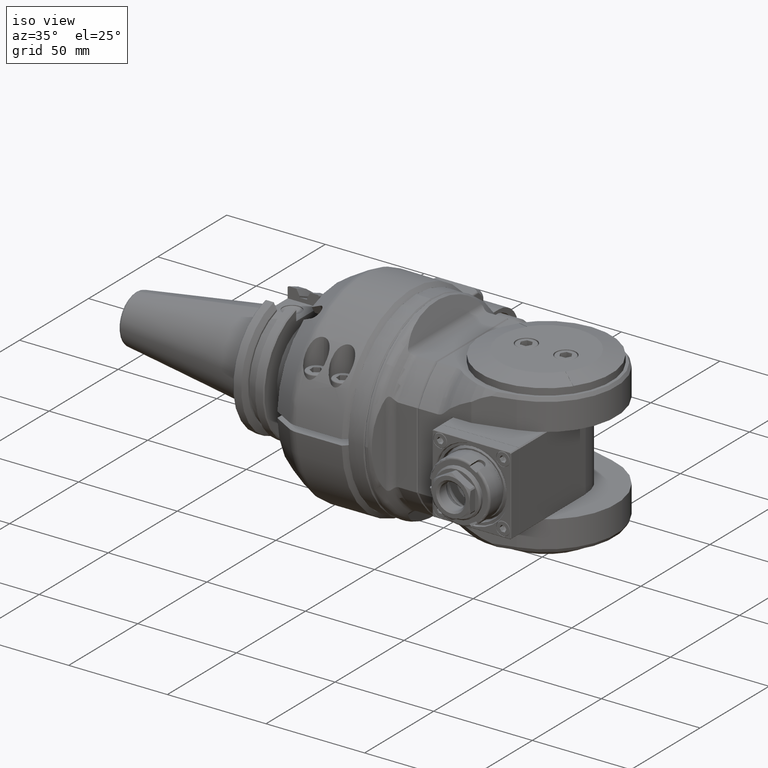
[diagram: clean part render]
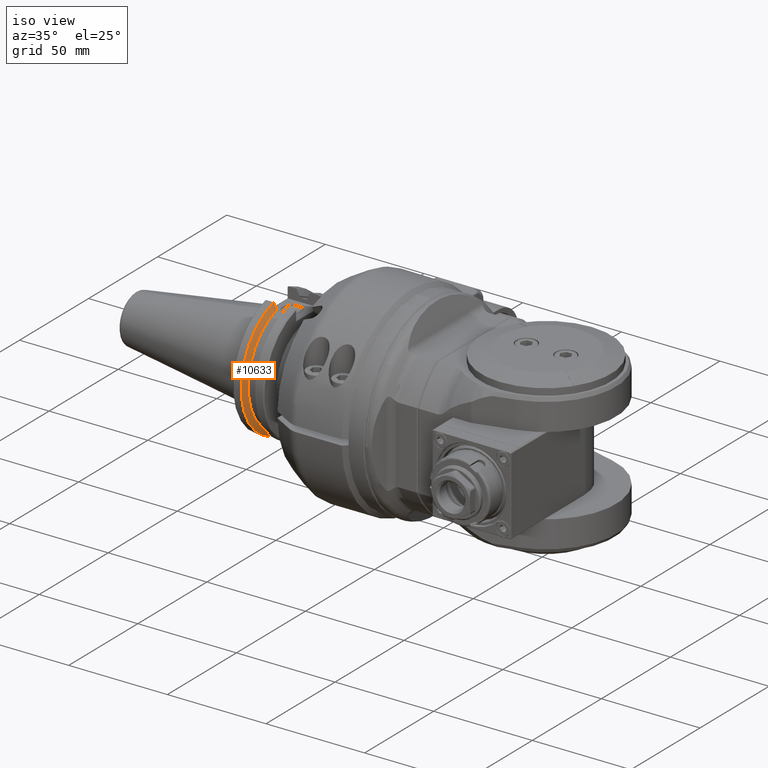
[diagram: same view with one face highlighted and labeled with its STEP entity id]
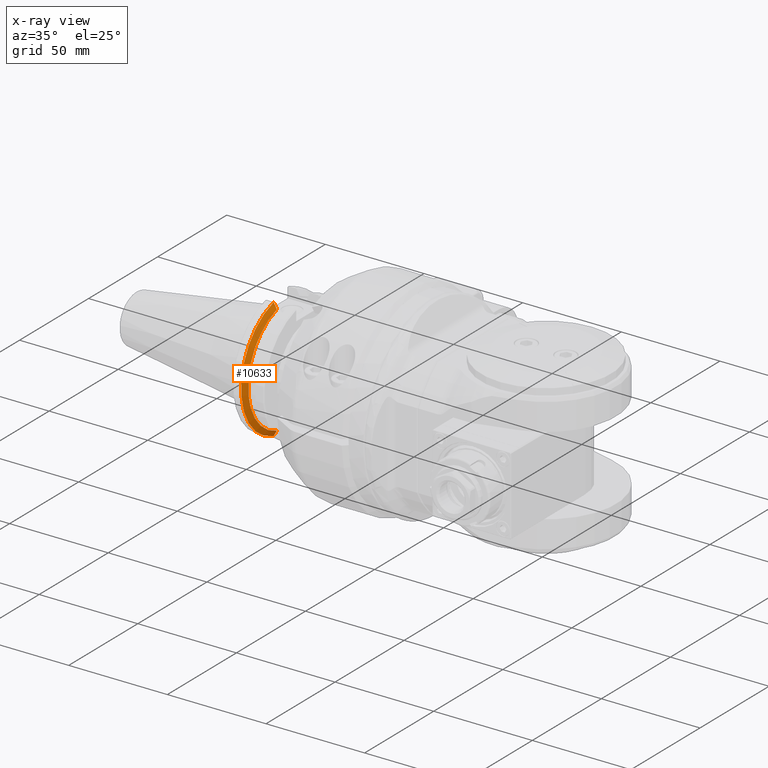
[diagram: x-ray of the same camera — body ghosted, the highlighted face saturated]
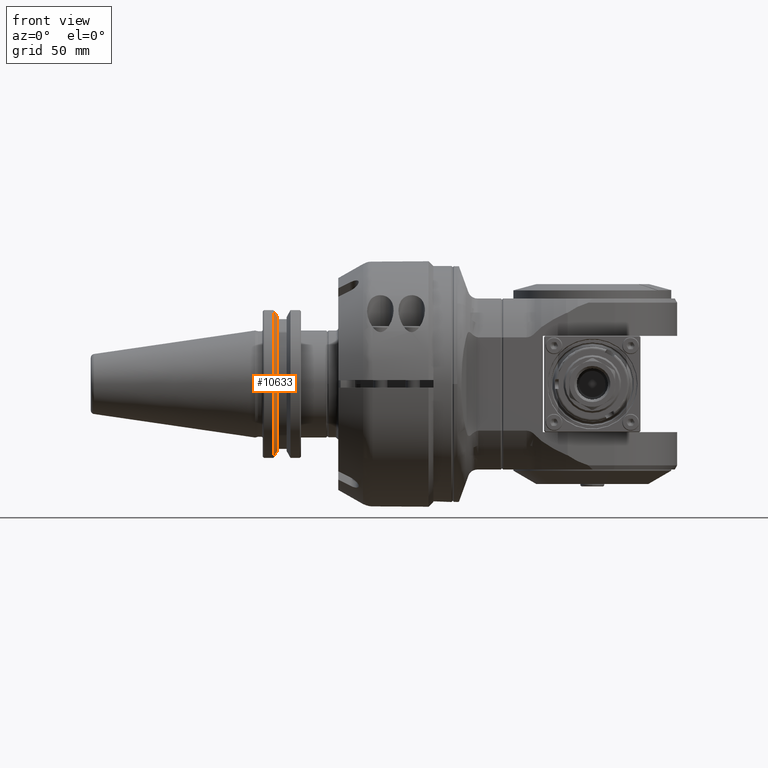
[diagram: same view with one face highlighted and labeled with its STEP entity id]
A machine part, iso view. The second image highlights one B-rep face of the part: STEP entity #10633.
The next image is the same camera in x-ray: the body ghosted, the highlighted face saturated — about 0% of this face is hidden behind the body in this view.
A second angle (front view) of the same face is appended — the face is thin or edge-on in the first view.
In plain terms, the highlighted conical surface has half-angle 60 deg.
Its self-contained STEP definition (entity closure, byte-faithful):
#376=CONICAL_SURFACE('',#11783,30.35685371176,1.0471975511966);
#925=CIRCLE('',#11782,31.75);
#926=CIRCLE('',#11784,28.96370742351);
#1550=FACE_OUTER_BOUND('',#2268,.T.);
#2268=EDGE_LOOP('',(#9641,#9642,#9643,#9644));
#3858=B_SPLINE_CURVE_WITH_KNOTS('',3,(#48920,#48921,#48922,#48923,#48924,
#48925,#48926,#48927,#48928,#48929),.UNSPECIFIED.,.F.,.F.,(4,3,3,4),(0.,
0.3333333333333,0.6666666666667,0.999999519411195),.UNSPECIFIED.);
#3859=B_SPLINE_CURVE_WITH_KNOTS('',3,(#48945,#48946,#48947,#48948,#48949,
#48950,#48951,#48952,#48953,#48954),.UNSPECIFIED.,.F.,.F.,(4,3,3,4),(4.80831203006997E-7,
0.3333333333333,0.6666666666667,1.),.UNSPECIFIED.);
#5055=VERTEX_POINT('',#48917);
#5056=VERTEX_POINT('',#48919);
#5061=VERTEX_POINT('',#48942);
#5062=VERTEX_POINT('',#48944);
#6580=EDGE_CURVE('',#5056,#5055,#3858,.T.);
#6588=EDGE_CURVE('',#5062,#5061,#3859,.T.);
#6597=EDGE_CURVE('',#5055,#5062,#925,.T.);
#6598=EDGE_CURVE('',#5056,#5061,#926,.T.);
#9641=ORIENTED_EDGE('',*,*,#6588,.T.);
#9642=ORIENTED_EDGE('',*,*,#6598,.F.);
#9643=ORIENTED_EDGE('',*,*,#6580,.T.);
#9644=ORIENTED_EDGE('',*,*,#6597,.T.);
#10633=ADVANCED_FACE('',(#1550),#376,.T.);
#11782=AXIS2_PLACEMENT_3D('',#48998,#14680,#14681);
#11783=AXIS2_PLACEMENT_3D('',#48999,#14682,#14683);
#11784=AXIS2_PLACEMENT_3D('',#49000,#14684,#14685);
#14680=DIRECTION('center_axis',(1.,0.,0.));
#14681=DIRECTION('ref_axis',(0.,-0.258000000000008,0.96614491666623));
#14682=DIRECTION('center_axis',(-1.,0.,0.));
#14683=DIRECTION('ref_axis',(0.,0.,-1.));
#14684=DIRECTION('center_axis',(1.,0.,0.));
#14685=DIRECTION('ref_axis',(0.,-0.282819456785104,0.959173162084813));
#48917=CARTESIAN_POINT('',(-78.3916667879604,-8.19150055390163,30.6751009778147));
#48919=CARTESIAN_POINT('',(-76.7830008674234,-8.19149903389948,27.7812135490217));
#48920=CARTESIAN_POINT('Ctrl Pts',(-76.7830026022701,-8.19149915056113,
27.7812157846877));
#48921=CARTESIAN_POINT('Ctrl Pts',(-76.9566273677416,-8.19149915478167,
28.0947430174781));
#48922=CARTESIAN_POINT('Ctrl Pts',(-77.1319683304014,-8.19149983685796,
28.4109446777695));
#48923=CARTESIAN_POINT('Ctrl Pts',(-77.3090125466266,-8.19150000478196,
28.729815149563));
#48924=CARTESIAN_POINT('Ctrl Pts',(-77.4860567628518,-8.19150017270595,
29.0486856213565));
#48925=CARTESIAN_POINT('Ctrl Pts',(-77.6648042335564,-8.19149983775545,
29.3702249008794));
#48926=CARTESIAN_POINT('Ctrl Pts',(-77.8452486475735,-8.19149998389378,
29.6944376199839));
#48927=CARTESIAN_POINT('Ctrl Pts',(-78.0256928014319,-8.19150013003191,
30.0186498716493));
#48928=CARTESIAN_POINT('Ctrl Pts',(-78.2078338927865,-8.19150074656953,
30.3455355586823));
#48929=CARTESIAN_POINT('Ctrl Pts',(-78.3916668041875,-8.19150074271744,
30.6751009687632));
#48942=CARTESIAN_POINT('',(-76.7830008675374,-8.19149903370473,-27.7812135494566));
#48944=CARTESIAN_POINT('',(-78.3916667873843,-8.19150055412795,-30.6751009773953));
#48945=CARTESIAN_POINT('Ctrl Pts',(-78.3916668038818,-8.19150074280088,
-30.6751009681929));
#48946=CARTESIAN_POINT('Ctrl Pts',(-78.2078338924708,-8.19150074665283,
-30.3455355580934));
#48947=CARTESIAN_POINT('Ctrl Pts',(-78.0256928012627,-8.19150013004781,
-30.0186498713408));
#48948=CARTESIAN_POINT('Ctrl Pts',(-77.8452486475559,-8.1914999838941,-29.6944376199521));
#48949=CARTESIAN_POINT('Ctrl Pts',(-77.6648042335592,-8.19149983774018,
-29.3702249008886));
#48950=CARTESIAN_POINT('Ctrl Pts',(-77.4860567628829,-8.19150017272804,
-29.0486856214063));
#48951=CARTESIAN_POINT('Ctrl Pts',(-77.3090125466091,-8.19150000478011,
-28.729815149532));
#48952=CARTESIAN_POINT('Ctrl Pts',(-77.1319683303354,-8.19149983683218,
-28.4109446776579));
#48953=CARTESIAN_POINT('Ctrl Pts',(-76.9566273675503,-8.19149915466931,
-28.0947430171649));
#48954=CARTESIAN_POINT('Ctrl Pts',(-76.7830026026121,-8.19149915044927,
-27.7812157853383));
#48998=CARTESIAN_POINT('Origin',(-78.39166676908,0.,0.));
#48999=CARTESIAN_POINT('Origin',(-77.58733338454,0.,0.));
#49000=CARTESIAN_POINT('Origin',(-76.783,0.,0.));